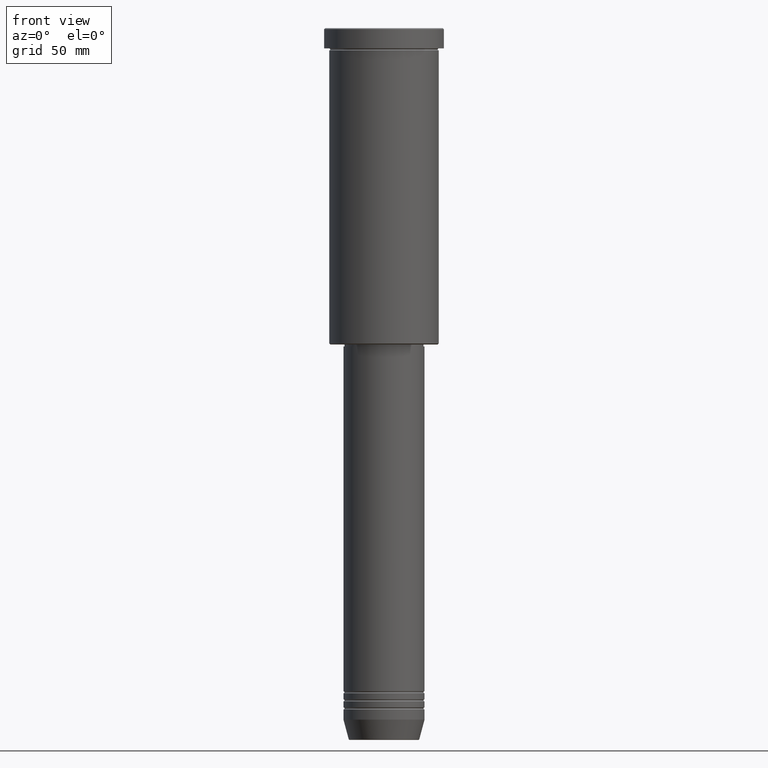
[diagram: clean part render]
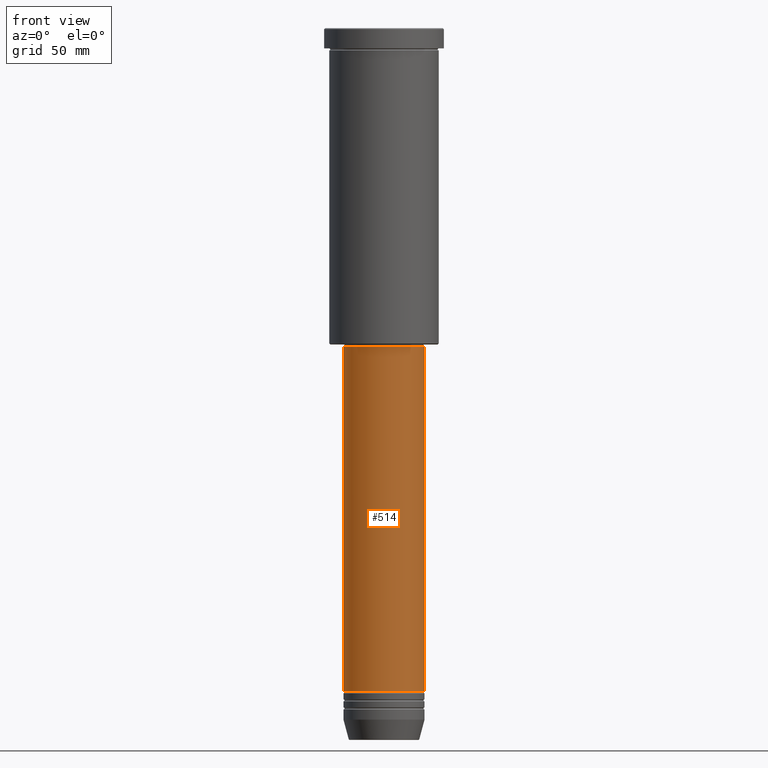
[diagram: same view with one face highlighted and labeled with its STEP entity id]
A machine part, front view. The second image highlights one B-rep face of the part: STEP entity #514.
In plain terms, the highlighted cylindrical surface (partial cylindrical patch) has radius 20 mm, axis along (-0, -0, 1).
Its self-contained STEP definition (entity closure, byte-faithful):
#33 = ORIENTED_EDGE ( 'NONE', *, *, #1099, .T. ) ;
#79 = CARTESIAN_POINT ( 'NONE',  ( 0.000000000000000000, 0.000000000000000000, -156.9999999999999432 ) ) ;
#91 = AXIS2_PLACEMENT_3D ( 'NONE', #200, #409, #395 ) ;
#200 = CARTESIAN_POINT ( 'NONE',  ( 0.000000000000000000, 0.000000000000000000, -326.9999999999999432 ) ) ;
#241 = VECTOR ( 'NONE', #1062, 1000.000000000000000 ) ;
#275 = VERTEX_POINT ( 'NONE', #777 ) ;
#308 = CARTESIAN_POINT ( 'NONE',  ( -19.99999999999999645, 2.449293598294706119E-15, 0.000000000000000000 ) ) ;
#338 = CARTESIAN_POINT ( 'NONE',  ( -19.99999999999999645, 2.449293598294706119E-15, -156.9999999999999432 ) ) ;
#348 = DIRECTION ( 'NONE',  ( -0.000000000000000000, -0.000000000000000000, 1.000000000000000000 ) ) ;
#395 = DIRECTION ( 'NONE',  ( 1.000000000000000000, 0.000000000000000000, 0.000000000000000000 ) ) ;
#409 = DIRECTION ( 'NONE',  ( -0.000000000000000000, -0.000000000000000000, 1.000000000000000000 ) ) ;
#442 = DIRECTION ( 'NONE',  ( -0.000000000000000000, -0.000000000000000000, 1.000000000000000000 ) ) ;
#469 = CYLINDRICAL_SURFACE ( 'NONE', #1029, 19.99999999999999645 ) ;
#472 = VERTEX_POINT ( 'NONE', #338 ) ;
#514 = ADVANCED_FACE ( 'NONE', ( #730 ), #469, .T. ) ;
#586 = VERTEX_POINT ( 'NONE', #845 ) ;
#643 = EDGE_CURVE ( 'NONE', #586, #472, #961, .T. ) ;
#667 = CARTESIAN_POINT ( 'NONE',  ( 0.000000000000000000, 0.000000000000000000, 0.000000000000000000 ) ) ;
#730 = FACE_OUTER_BOUND ( 'NONE', #1027, .T. ) ;
#748 = CIRCLE ( 'NONE', #919, 19.99999999999999645 ) ;
#777 = CARTESIAN_POINT ( 'NONE',  ( 19.99999999999999645, 0.000000000000000000, -156.9999999999999432 ) ) ;
#779 = ORIENTED_EDGE ( 'NONE', *, *, #794, .T. ) ;
#794 = EDGE_CURVE ( 'NONE', #1061, #275, #1172, .T. ) ;
#813 = CARTESIAN_POINT ( 'NONE',  ( 19.99999999999999645, 0.000000000000000000, 0.000000000000000000 ) ) ;
#830 = CARTESIAN_POINT ( 'NONE',  ( 20.00000000000000000, 0.000000000000000000, -326.9999999999999432 ) ) ;
#845 = CARTESIAN_POINT ( 'NONE',  ( -20.00000000000000000, 2.449293598294706513E-15, -326.9999999999999432 ) ) ;
#861 = VECTOR ( 'NONE', #348, 1000.000000000000000 ) ;
#908 = EDGE_CURVE ( 'NONE', #472, #275, #748, .T. ) ;
#919 = AXIS2_PLACEMENT_3D ( 'NONE', #79, #442, #1175 ) ;
#924 = ORIENTED_EDGE ( 'NONE', *, *, #908, .F. ) ;
#961 = LINE ( 'NONE', #308, #241 ) ;
#1013 = CIRCLE ( 'NONE', #91, 20.00000000000000000 ) ;
#1025 = DIRECTION ( 'NONE',  ( -0.000000000000000000, -0.000000000000000000, 1.000000000000000000 ) ) ;
#1027 = EDGE_LOOP ( 'NONE', ( #1039, #33, #779, #924 ) ) ;
#1029 = AXIS2_PLACEMENT_3D ( 'NONE', #667, #1025, #1179 ) ;
#1039 = ORIENTED_EDGE ( 'NONE', *, *, #643, .F. ) ;
#1061 = VERTEX_POINT ( 'NONE', #830 ) ;
#1062 = DIRECTION ( 'NONE',  ( -0.000000000000000000, -0.000000000000000000, 1.000000000000000000 ) ) ;
#1099 = EDGE_CURVE ( 'NONE', #586, #1061, #1013, .T. ) ;
#1172 = LINE ( 'NONE', #813, #861 ) ;
#1175 = DIRECTION ( 'NONE',  ( 1.000000000000000000, 0.000000000000000000, 0.000000000000000000 ) ) ;
#1179 = DIRECTION ( 'NONE',  ( 1.000000000000000000, 0.000000000000000000, 0.000000000000000000 ) ) ;